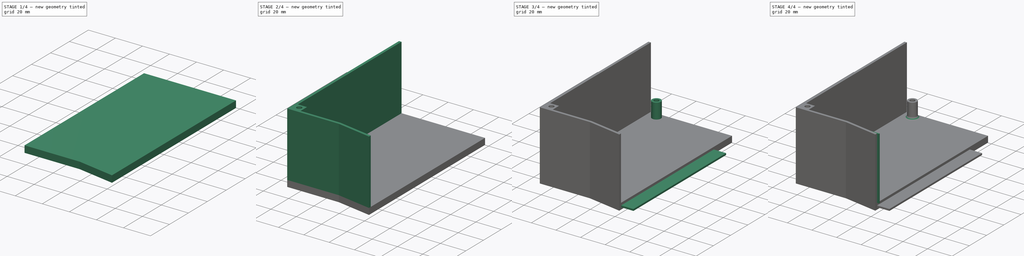
[diagram: build sequence overview — one tinted view per stage of 4, left to right]
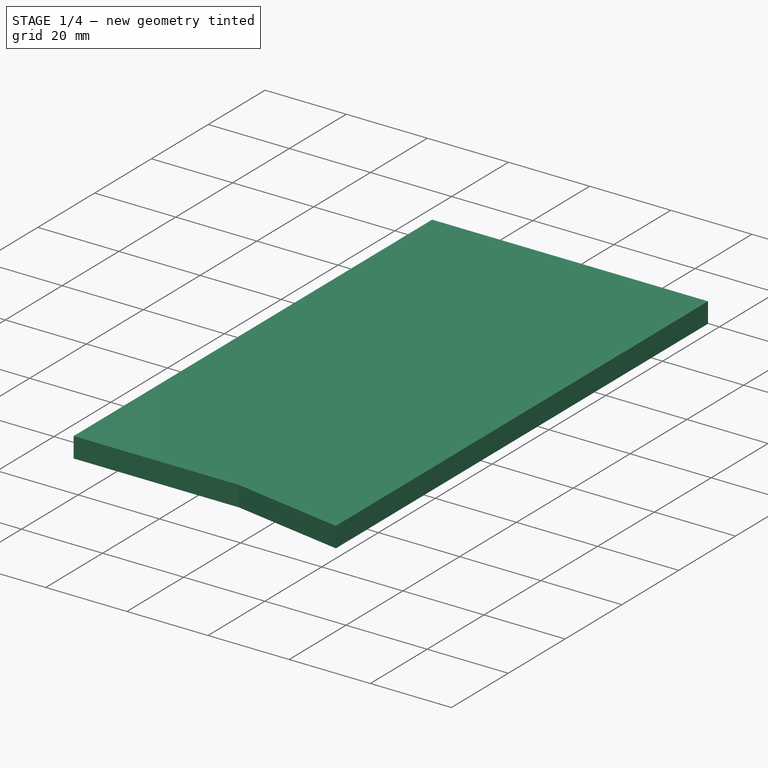
[diagram: stage 1 of 4 — iso view after this stage's code; geometry added in this stage tinted green]
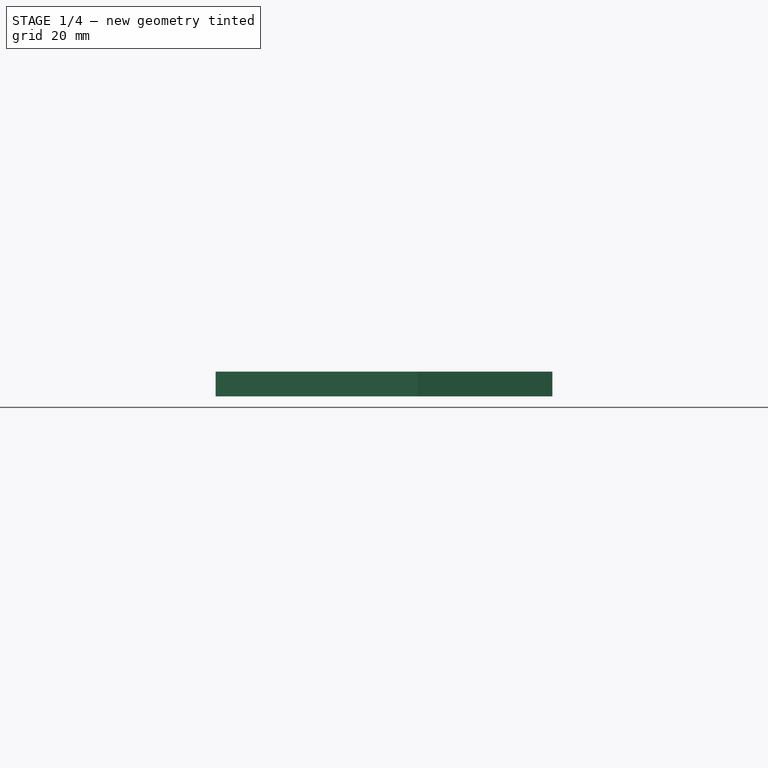
[diagram: stage 1 of 4 — front view after this stage's code; geometry added in this stage tinted green]
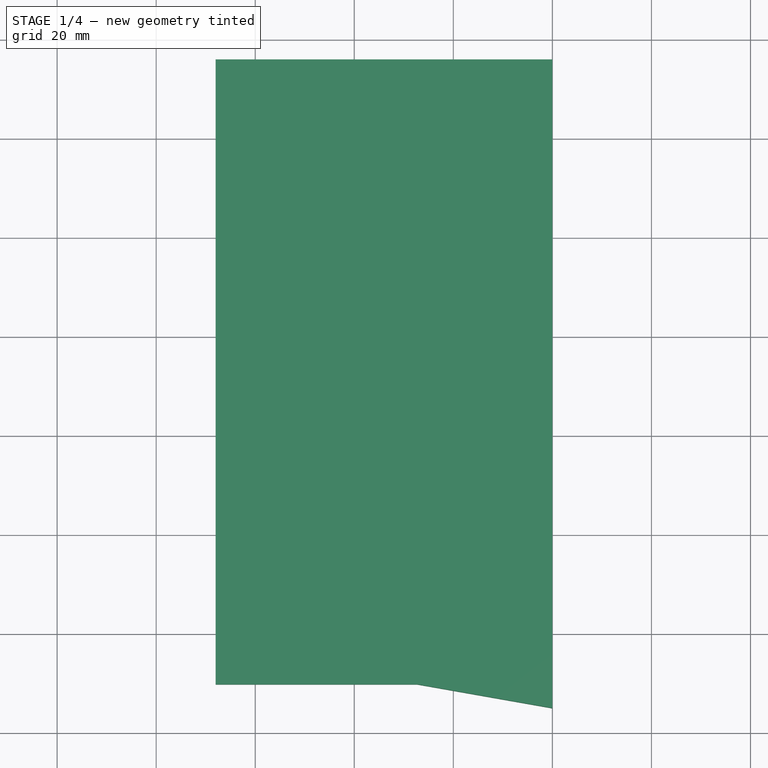
[diagram: stage 1 of 4 — top view after this stage's code; geometry added in this stage tinted green]
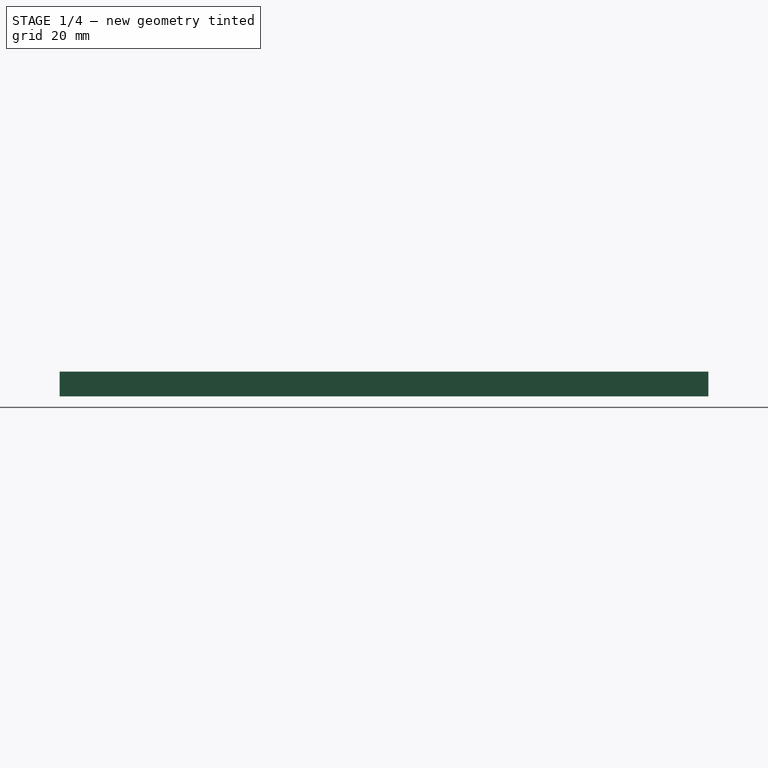
[diagram: stage 1 of 4 — right view after this stage's code; geometry added in this stage tinted green]
FCSTD DOCUMENT  (FreeCAD 2022.430R26244 +4758 (Git))
Label: SecondPartPeripherals
License: All rights reserved
LicenseURL: http://en.wikipedia.org/wiki/All_rights_reserved
objects: Sketcher::SketchObject×11, PartDesign::Pad×8, PartDesign::Pocket×3, PartDesign::CoordinateSystem×1, PartDesign::Fillet×1, PartDesign::Body×1, App::Part×1
note: 49 computed .brp shape members not serialized (recipe doc carries the construction recipe); baked Part::Feature solids carry a one-line shape summary decoded from their .brp

FEATURE [PartDesign::CoordinateSystem] LCS_0
  AttacherType = Attacher::AttachEngine3D
  MapMode = 2
  Support = -> [X_Axis001]
  TreeRank = 0
FEATURE [Sketcher::SketchObject] Sketch_1
  FullyConstrained = true
  TreeRank = 0
  sketch-geometry (4):
    g0: LineSegment StartX=0 StartY=0 StartZ=0 EndX=-63 EndY=0 EndZ=0
    g1: LineSegment StartX=-63 StartY=0 StartZ=0 EndX=-63 EndY=116 EndZ=0
    g2: LineSegment StartX=-63 StartY=116 StartZ=0 EndX=0 EndY=116 EndZ=0
    g3: LineSegment StartX=0 StartY=116 StartZ=0 EndX=0 EndY=0 EndZ=0
  constraints (11):
    c: Coincident(g0,g1)
    c: Coincident(g1,g2)
    c: Coincident(g2,g3)
    c: Coincident(g3,g0)
    c: Horizontal(g0)
    c: Horizontal(g2)
    c: Vertical(g1)
    c: Vertical(g3)
    c: Coincident(g0,g-1)
    c: DistanceY(g3,g3) = 116
    c: DistanceX(g2,g2) = 63
FEATURE [PartDesign::Pad] Pad  label="MainSupport"
  AddSubType = 0
  CheckUpToFaceLimits = true
  ClaimChildren = false
  Direction = (0,0,1)
  Fit = 0
  FitJoin = 0
  InnerFit = 0
  InnerFitJoin = 0
  InnerTaperAngle = 0
  InnerTaperAngleRev = 0
  Length = 5
  Length2 = 100
  NewSolid = false
  Profile = -> Sketch_1
  Suppress = false
  TreeRank = 0
  Type = 0
  _ProfileBasedVersion = 0
FEATURE [Sketcher::SketchObject] Sketch
  ExternalGeometry = -> [Pad]
  FullyConstrained = true
  MapMode = 5
  Support = -> [XY_Plane001]
  TreeRank = 1
  sketch-geometry (5):
    g0: LineSegment StartX=0 StartY=0 StartZ=0 EndX=-63 EndY=0 EndZ=0
    g1: LineSegment StartX=-63 StartY=0 StartZ=0 EndX=-63 EndY=-10.2 EndZ=0
    g2: LineSegment StartX=0 StartY=-15 StartZ=0 EndX=0 EndY=0 EndZ=0
    g3: LineSegment StartX=0 StartY=-15 StartZ=0 EndX=-27.2222 EndY=-10.2 EndZ=0
    g4: LineSegment StartX=-27.2222 StartY=-10.2 StartZ=0 EndX=-63 EndY=-10.2 EndZ=0
  constraints (13):
    c: Coincident(g0,g1)
    c: Coincident(g2,g0)
    c: Vertical(g1)
    c: Vertical(g2)
    c: Coincident(g0,g-1)
    c: Coincident(g0,g-3)
    c: DistanceY(g2,g2) = 15
    c: DistanceY(g1,g1) = 10.2
    c: Coincident(g3,g2)
    c: Coincident(g4,g3)
    c: Coincident(g4,g1)
    c: Horizontal(g4)
    c: Angle(g2,g3) = 1.39626
FEATURE [PartDesign::Pad] Pad001  label="ExtraPeripheralsSize"
  AddSubType = 0
  AlongSketchNormal = false
  BaseFeature = -> Pad
  CheckUpToFaceLimits = true
  ClaimChildren = false
  Direction = (0,0,1)
  Fit = 0
  FitJoin = 0
  InnerFit = 0
  InnerFitJoin = 0
  InnerTaperAngle = 0
  InnerTaperAngleRev = 0
  Length = 5
  Length2 = 100
  Linearize = true
  NewSolid = false
  Profile = -> Sketch
  Suppress = false
  TreeRank = 2
  Type = 0
  _ProfileBasedVersion = 1
FEATURE [Sketcher::SketchObject] Sketch001
  ExternalGeometry = -> [Pad001]
  FullyConstrained = true
  MapMode = 5
  Support = -> [XY_Plane001]
  TreeRank = 3
  sketch-geometry (4):
    g0: LineSegment StartX=-63 StartY=116 StartZ=0 EndX=-68 EndY=116 EndZ=0
    g1: LineSegment StartX=-68 StartY=116 StartZ=0 EndX=-68 EndY=-10.2 EndZ=0
    g2: LineSegment StartX=-68 StartY=-10.2 StartZ=0 EndX=-63 EndY=-10.2 EndZ=0
    g3: LineSegment StartX=-63 StartY=-10.2 StartZ=0 EndX=-63 EndY=116 EndZ=0
  constraints (10):
    c: Coincident(g0,g1)
    c: Coincident(g1,g2)
    c: Coincident(g2,g3)
    c: Coincident(g3,g0)
    c: Horizontal(g0)
    c: Horizontal(g2)
    c: Vertical(g1)
    c: Coincident(g0,g-3)
    c: Coincident(g2,g-4)
    c: DistanceX(g2,g2) = 5
FEATURE [PartDesign::Pad] Pad002  label="ExtraSideSize"
  AddSubType = 0
  AlongSketchNormal = false
  BaseFeature = -> Pad001
  CheckUpToFaceLimits = true
  ClaimChildren = false
  Direction = (0,0,1)
  Fit = 0
  FitJoin = 0
  InnerFit = 0
  InnerFitJoin = 0
  InnerTaperAngle = 0
  InnerTaperAngleRev = 0
  Length = 5
  Length2 = 100
  Linearize = true
  NewSolid = false
  Profile = -> Sketch001
  Suppress = false
  TreeRank = 4
  Type = 0
  _ProfileBasedVersion = 1
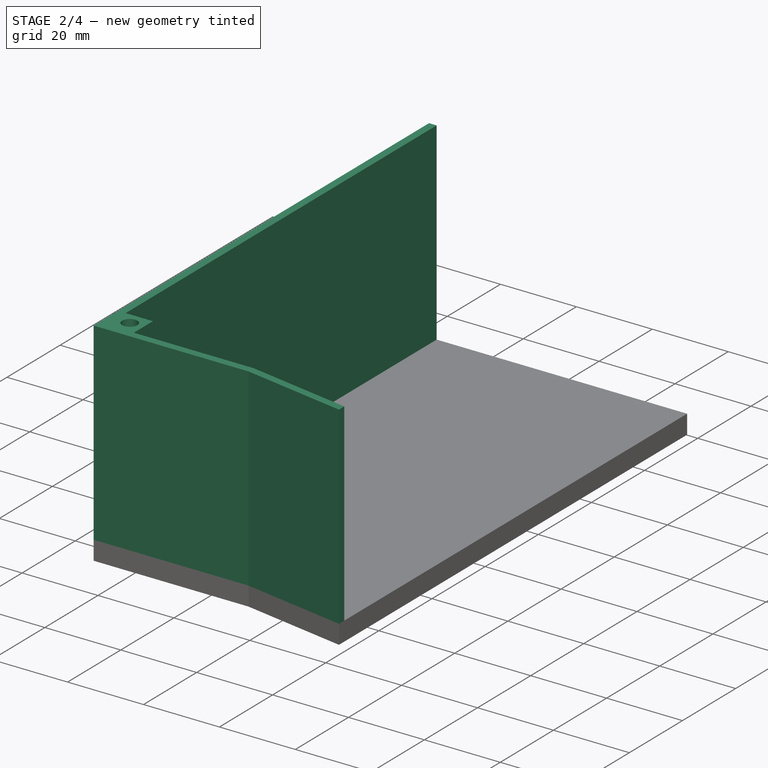
[diagram: stage 2 of 4 — iso view after this stage's code; geometry added in this stage tinted green]
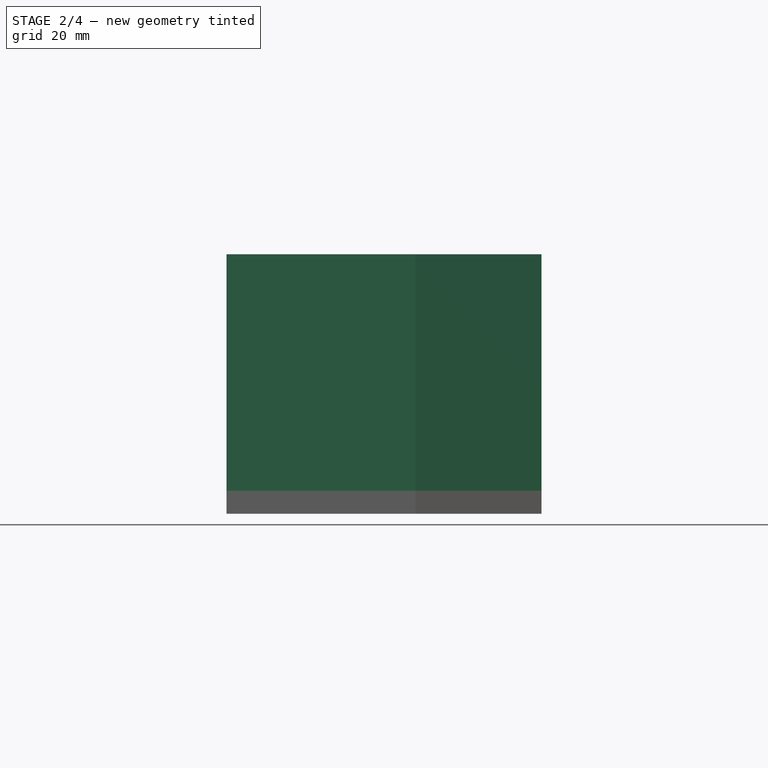
[diagram: stage 2 of 4 — front view after this stage's code; geometry added in this stage tinted green]
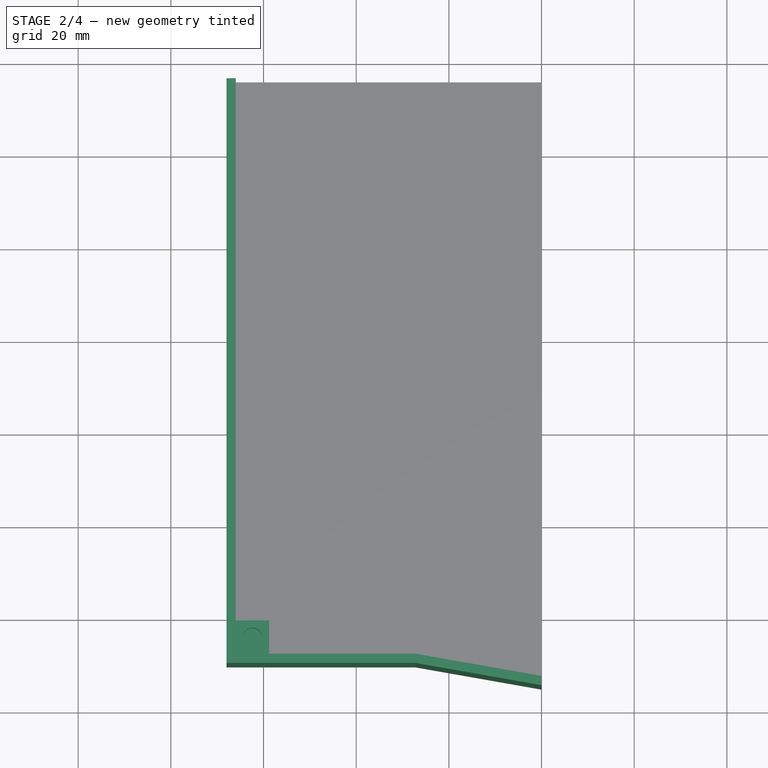
[diagram: stage 2 of 4 — top view after this stage's code; geometry added in this stage tinted green]
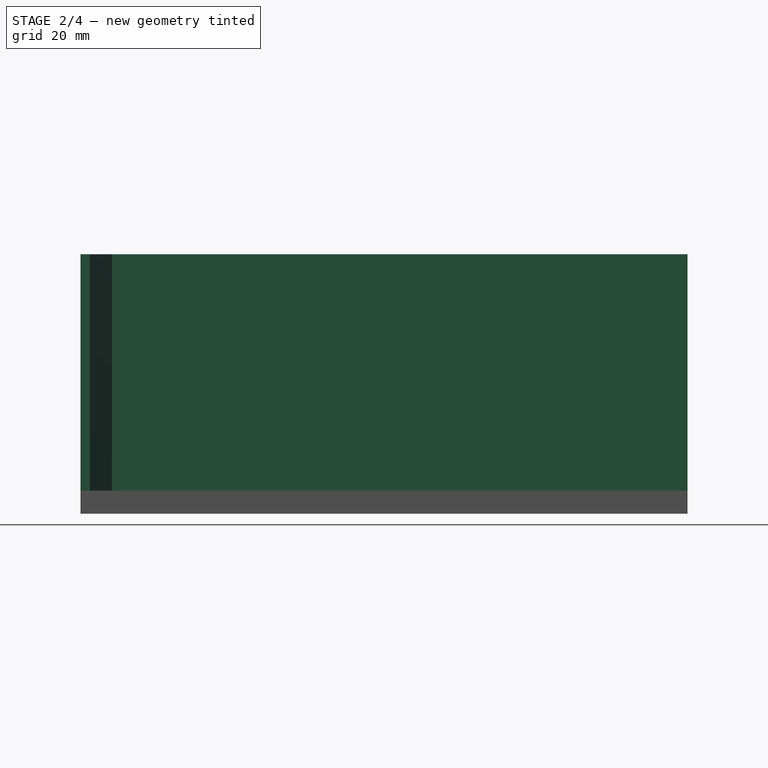
[diagram: stage 2 of 4 — right view after this stage's code; geometry added in this stage tinted green]
FEATURE [Sketcher::SketchObject] Sketch002
  ExternalGeometry = -> [Pad002]
  FullyConstrained = true
  MapMode = 5
  Placement = pos=(0,0,5) rot=(0,0,1;0rad)
  Support = -> [Pad002]
  TreeRank = 5
  sketch-geometry (9):
    g0: LineSegment StartX=-68 StartY=116 StartZ=0 EndX=-68 EndY=-10.2 EndZ=0
    g1: LineSegment StartX=-68 StartY=-10.2 StartZ=0 EndX=-27.2222 EndY=-10.2 EndZ=0
    g2: LineSegment StartX=-27.2222 StartY=-8.2 StartZ=0 EndX=-66 EndY=-8.2 EndZ=0
    g3: LineSegment StartX=-66 StartY=-8.2 StartZ=0 EndX=-66 EndY=116 EndZ=0
    g4: LineSegment StartX=-66 StartY=116 StartZ=0 EndX=-68 EndY=116 EndZ=0
    g5: LineSegment [constr] StartX=-27.2222 StartY=-10.2 StartZ=0 EndX=-27.2222 EndY=-8.2 EndZ=0
    g6: LineSegment StartX=-27.2222 StartY=-10.2 StartZ=0 EndX=0 EndY=-15 EndZ=0
    g7: LineSegment StartX=0 StartY=-15 StartZ=0 EndX=0 EndY=-13 EndZ=0
    g8: LineSegment StartX=-27.2222 StartY=-8.2 StartZ=0 EndX=0 EndY=-13 EndZ=0
  constraints (22):
    c: Coincident(g0,g-3)
    c: Coincident(g0,g-3)
    c: Coincident(g1,g0)
    c: Horizontal(g2)
    c: Coincident(g3,g2)
    c: Vertical(g3)
    c: Coincident(g4,g3)
    c: Coincident(g4,g0)
    c: Horizontal(g4)
    c: DistanceX(g4,g4) = 2
    c: Coincident(g1,g-4)
    c: Coincident(g5,g1)
    c: Vertical(g5)
    c: DistanceY(g5,g5) = 2
    c: Coincident(g2,g5)
    c: Coincident(g6,g1)
    c: Coincident(g6,g-5)
    c: Coincident(g7,g6)
    c: Vertical(g7)
    c: DistanceY(g7,g7) = 2
    c: Coincident(g8,g2)
    c: Coincident(g8,g7)
FEATURE [PartDesign::Pad] Pad003  label="SidePanel"
  AddSubType = 0
  AlongSketchNormal = false
  BaseFeature = -> Pad002
  CheckUpToFaceLimits = true
  ClaimChildren = false
  Direction = (0,0,1)
  Fit = 0
  FitJoin = 0
  InnerFit = 0
  InnerFitJoin = 0
  InnerTaperAngle = 0
  InnerTaperAngleRev = 0
  Length = 51
  Length2 = 100
  Linearize = true
  NewSolid = false
  Profile = -> Sketch002
  Suppress = false
  TreeRank = 6
  Type = 0
  _ProfileBasedVersion = 1
FEATURE [Sketcher::SketchObject] Sketch003
  ExternalGeometry = -> [Pad003]
  FullyConstrained = true
  MapMode = 5
  Placement = pos=(0,0,5) rot=(0,0,1;0rad)
  Support = -> [Pad003]
  TreeRank = 7
  sketch-geometry (4):
    g0: LineSegment StartX=-66 StartY=-8.2 StartZ=0 EndX=-58.8 EndY=-8.2 EndZ=0
    g1: LineSegment StartX=-58.8 StartY=-8.2 StartZ=0 EndX=-58.8 EndY=-1 EndZ=0
    g2: LineSegment StartX=-58.8 StartY=-1 StartZ=0 EndX=-66 EndY=-1 EndZ=0
    g3: LineSegment StartX=-66 StartY=-1 StartZ=0 EndX=-66 EndY=-8.2 EndZ=0
  constraints (11):
    c: Coincident(g0,g1)
    c: Coincident(g1,g2)
    c: Coincident(g2,g3)
    c: Coincident(g3,g0)
    c: Vertical(g3)
    c: Coincident(g0,g-3)
    c: Equal(g3,g0)
    c: Equal(g3,g1)
    c: Horizontal(g0)
    c: Vertical(g1)
    c: DistanceX(g2,g2) = 7.2
FEATURE [PartDesign::Pad] Pad004  label="ColumnPart"
  AddSubType = 0
  AlongSketchNormal = false
  BaseFeature = -> Pad003
  CheckUpToFaceLimits = true
  ClaimChildren = false
  Direction = (0,0,1)
  Fit = 0
  FitJoin = 0
  InnerFit = 0
  InnerFitJoin = 0
  InnerTaperAngle = 0
  InnerTaperAngleRev = 0
  Length = 51
  Length2 = 100
  Linearize = true
  NewSolid = false
  Profile = -> Sketch003
  Suppress = false
  TreeRank = 8
  Type = 0
  _ProfileBasedVersion = 1
FEATURE [Sketcher::SketchObject] Sketch004
  ExternalGeometry = -> [Pad004]
  FullyConstrained = true
  MapMode = 5
  Placement = pos=(0,0,56) rot=(0,0,1;0rad)
  Support = -> [Pad004]
  TreeRank = 9
  sketch-geometry (3):
    g0: LineSegment [constr] StartX=-62.4 StartY=-1 StartZ=0 EndX=-62.4 EndY=-4.6 EndZ=0
    g1: LineSegment [constr] StartX=-62.4 StartY=-4.6 StartZ=0 EndX=-58.8 EndY=-4.6 EndZ=0
    g2: Circle CenterX=-62.4 CenterY=-4.6 CenterZ=0 NormalX=0 NormalY=0 NormalZ=1 AngleXU=0 Radius=2
  constraints (7):
    c: Vertical(g0)
    c: Coincident(g1,g0)
    c: Horizontal(g1)
    c: Symmetric(g-4,g-3,g0)
    c: Symmetric(g-4,g-4,g1)
    c: Coincident(g2,g0)
    c: Diameter(g2) = 4
FEATURE [PartDesign::Pocket] Pocket  label="ColumnPartHole"
  AddSubType = 1
  BaseFeature = -> Pad004
  CheckUpToFaceLimits = true
  ClaimChildren = false
  Fit = 0
  FitJoin = 0
  InnerFit = 0
  InnerFitJoin = 0
  InnerTaperAngle = 0
  InnerTaperAngleRev = 0
  Length = 6.7
  Length2 = 100
  Linearize = true
  NewSolid = false
  Profile = -> Sketch004
  Suppress = false
  TreeRank = 10
  Type = 0
  _ProfileBasedVersion = 1
  _Version = 1
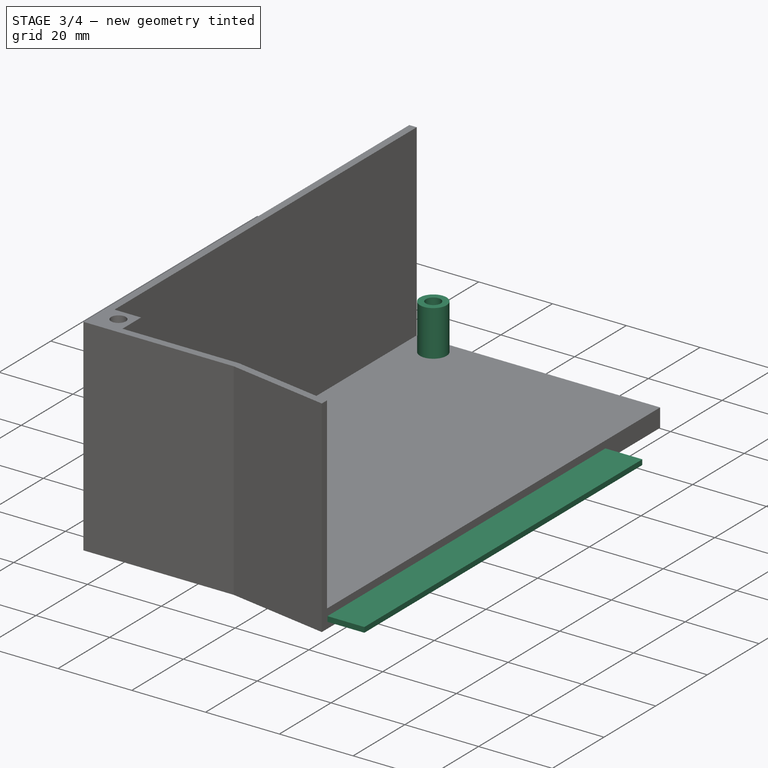
[diagram: stage 3 of 4 — iso view after this stage's code; geometry added in this stage tinted green]
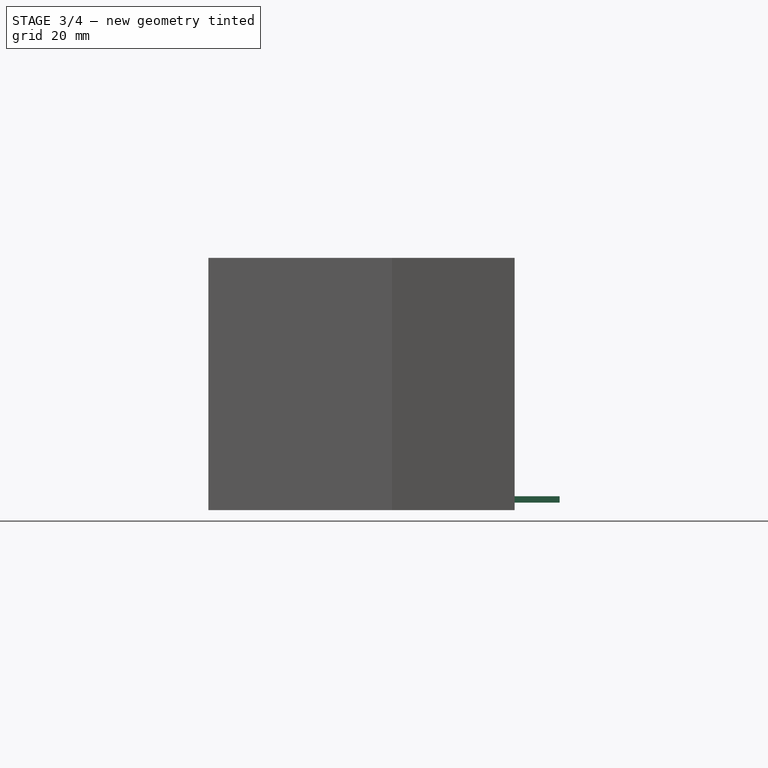
[diagram: stage 3 of 4 — front view after this stage's code; geometry added in this stage tinted green]
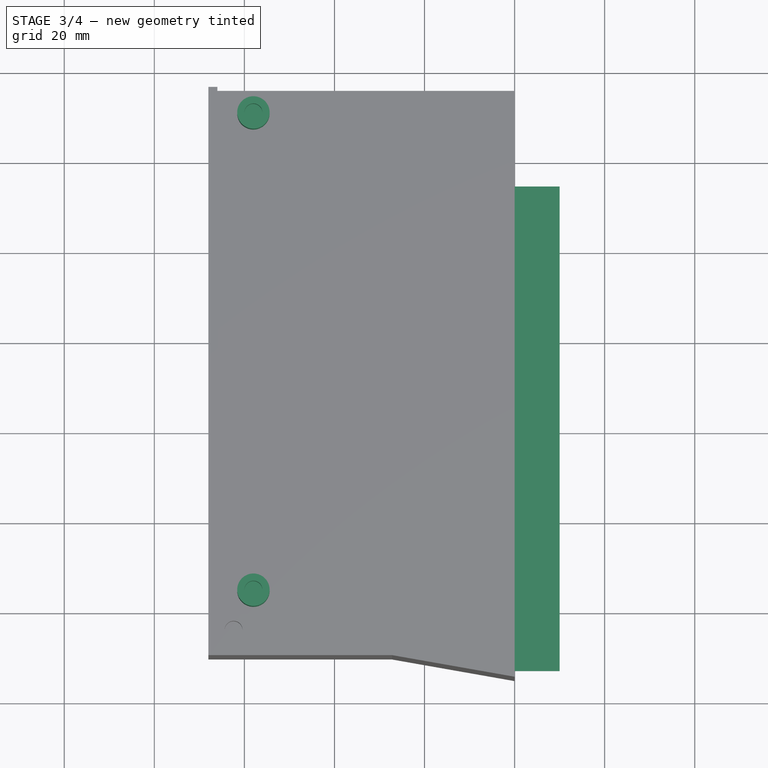
[diagram: stage 3 of 4 — top view after this stage's code; geometry added in this stage tinted green]
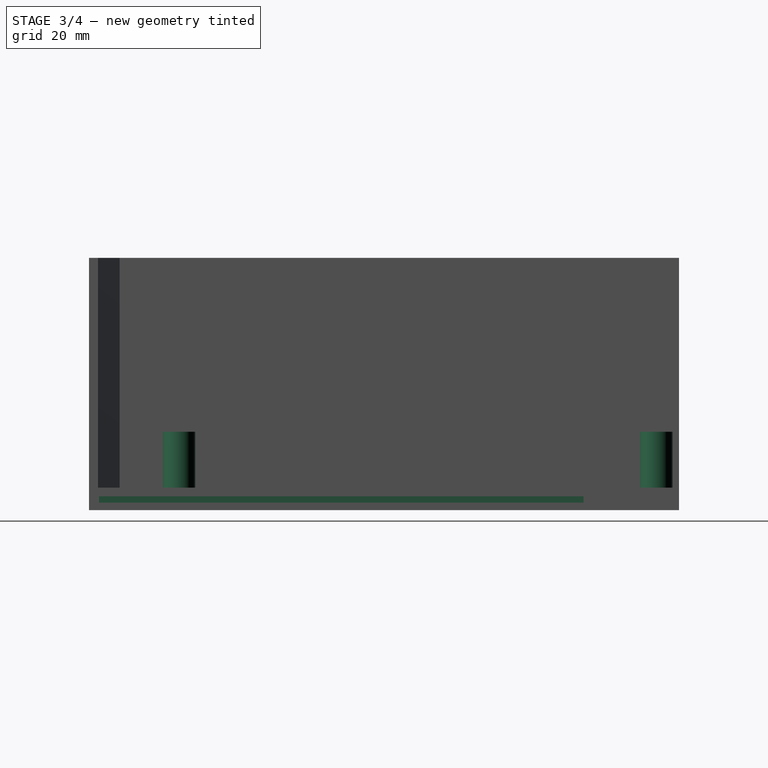
[diagram: stage 3 of 4 — right view after this stage's code; geometry added in this stage tinted green]
FEATURE [Sketcher::SketchObject] Sketch005
  ExternalGeometry = -> [Pocket]
  FullyConstrained = true
  MapMode = 5
  Placement = pos=(0,0,0) rot=(0.57735,0.57735,0.57735;2.0944rad)
  Support = -> [Pocket]
  TreeRank = 11
  sketch-geometry (4):
    g0: LineSegment StartX=94.8 StartY=3.06 StartZ=0 EndX=-12.8 EndY=3.06 EndZ=0
    g1: LineSegment StartX=-12.8 StartY=3.06 StartZ=0 EndX=-12.8 EndY=1.66 EndZ=0
    g2: LineSegment StartX=-12.8 StartY=1.66 StartZ=0 EndX=94.8 EndY=1.66 EndZ=0
    g3: LineSegment StartX=94.8 StartY=1.66 StartZ=0 EndX=94.8 EndY=3.06 EndZ=0
  constraints (12):
    c: Coincident(g0,g1)
    c: Coincident(g1,g2)
    c: Coincident(g2,g3)
    c: Coincident(g3,g0)
    c: Horizontal(g0)
    c: Horizontal(g2)
    c: Vertical(g1)
    c: Vertical(g3)
    c: DistanceX(g0,g-3) = 21.2
    c: DistanceX(g-4,g0) = 2.2
    c: DistanceY(g0,g-4) = 1.94
    c: DistanceY(g1,g1) = 1.4
FEATURE [PartDesign::Pad] Pad005  label="Puzzle1"
  AddSubType = 0
  AlongSketchNormal = false
  BaseFeature = -> Pocket
  CheckUpToFaceLimits = true
  ClaimChildren = false
  Direction = (1,0,0)
  Fit = 0
  FitJoin = 0
  InnerFit = 0
  InnerFitJoin = 0
  InnerTaperAngle = 0
  InnerTaperAngleRev = 0
  Length = 10
  Length2 = 100
  Linearize = true
  NewSolid = false
  Profile = -> Sketch005
  Suppress = false
  TreeRank = 12
  Type = 0
  _ProfileBasedVersion = 1
FEATURE [Sketcher::SketchObject] Sketch006
  ExternalGeometry = -> [Pad005]
  FullyConstrained = true
  MapMode = 5
  Placement = pos=(0,0,5) rot=(0,0,1;0rad)
  Support = -> [Pad005]
  TreeRank = 13
  sketch-geometry (2):
    g0: Circle CenterX=-58 CenterY=5 CenterZ=0 NormalX=0 NormalY=0 NormalZ=1 AngleXU=0 Radius=3.6
    g1: Circle CenterX=-58 CenterY=111 CenterZ=0 NormalX=0 NormalY=0 NormalZ=1 AngleXU=0 Radius=3.6
  constraints (6):
    c: DistanceY(g-3,g0) = 5
    c: DistanceX(g-3,g0) = 5
    c: DistanceX(g-3,g1) = 5
    c: DistanceY(g1,g-3) = 5
    c: Diameter(g1) = 7.2
    c: Diameter(g0) = 7.2
FEATURE [PartDesign::Pad] Pad006  label="MotherboardColumn"
  AddSubType = 0
  AlongSketchNormal = false
  BaseFeature = -> Pad005
  CheckUpToFaceLimits = true
  ClaimChildren = false
  Direction = (0,0,1)
  Fit = 0
  FitJoin = 0
  InnerFit = 0
  InnerFitJoin = 0
  InnerTaperAngle = 0
  InnerTaperAngleRev = 0
  Length = 12.4
  Length2 = 100
  Linearize = true
  NewSolid = false
  Profile = -> Sketch006
  Suppress = false
  TreeRank = 14
  Type = 0
  _ProfileBasedVersion = 1
FEATURE [Sketcher::SketchObject] Sketch007
  ExternalGeometry = -> [Pad006]
  FullyConstrained = true
  MapMode = 5
  Placement = pos=(0,0,17.4) rot=(0,0,1;0rad)
  Support = -> [Pad006]
  TreeRank = 15
  sketch-geometry (2):
    g0: Circle CenterX=-58 CenterY=5 CenterZ=0 NormalX=0 NormalY=0 NormalZ=1 AngleXU=0 Radius=2
    g1: Circle CenterX=-58 CenterY=111 CenterZ=0 NormalX=0 NormalY=0 NormalZ=1 AngleXU=0 Radius=2
  constraints (4):
    c: Coincident(g0,g-3)
    c: Coincident(g1,g-4)
    c: Diameter(g1) = 4
    c: Diameter(g0) = 4
FEATURE [PartDesign::Pocket] Pocket001  label="ColumnInsertHole"
  AddSubType = 1
  BaseFeature = -> Pad006
  CheckUpToFaceLimits = true
  ClaimChildren = false
  Fit = 0
  FitJoin = 0
  InnerFit = 0
  InnerFitJoin = 0
  InnerTaperAngle = 0
  InnerTaperAngleRev = 0
  Length = 6.7
  Length2 = 100
  Linearize = true
  NewSolid = false
  Profile = -> Sketch007
  Suppress = false
  TreeRank = 16
  Type = 0
  _ProfileBasedVersion = 1
  _Version = 1
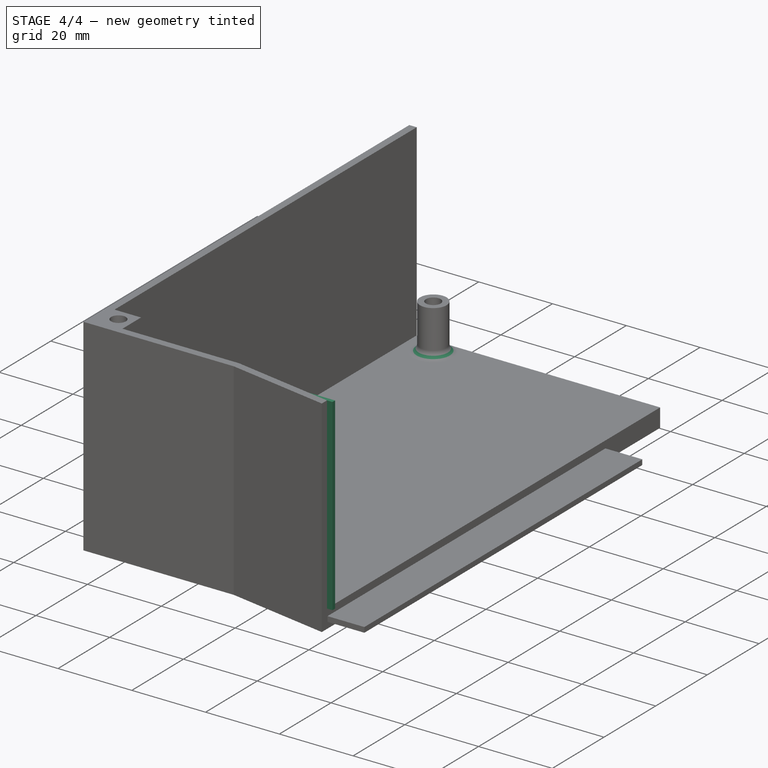
[diagram: stage 4 of 4 — iso view after this stage's code; geometry added in this stage tinted green]
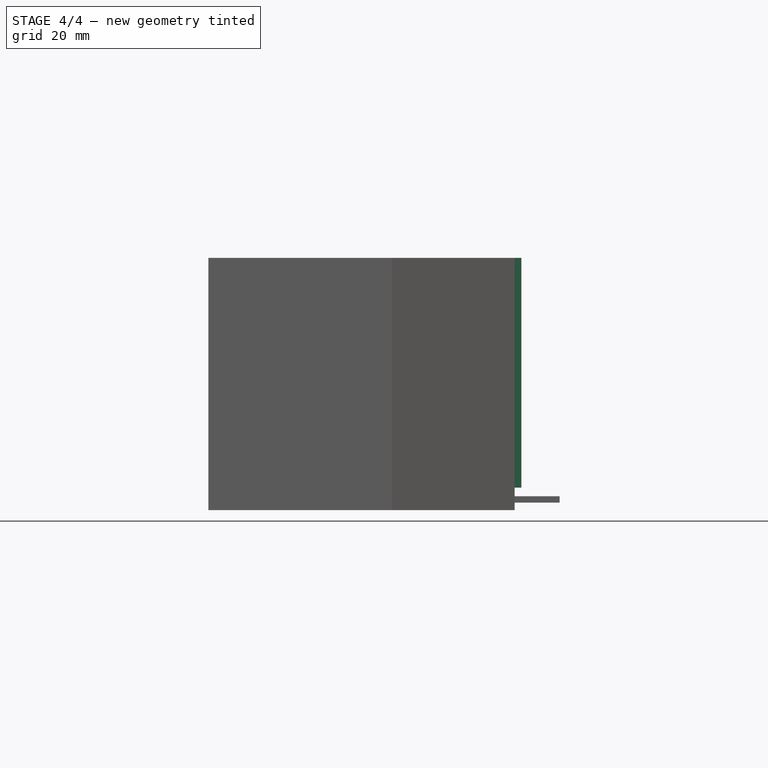
[diagram: stage 4 of 4 — front view after this stage's code; geometry added in this stage tinted green]
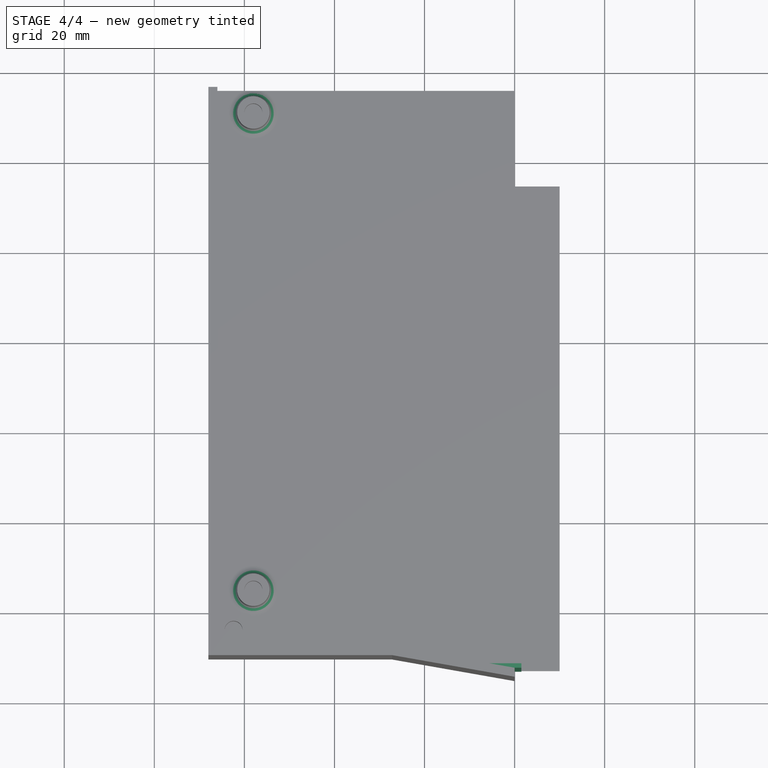
[diagram: stage 4 of 4 — top view after this stage's code; geometry added in this stage tinted green]
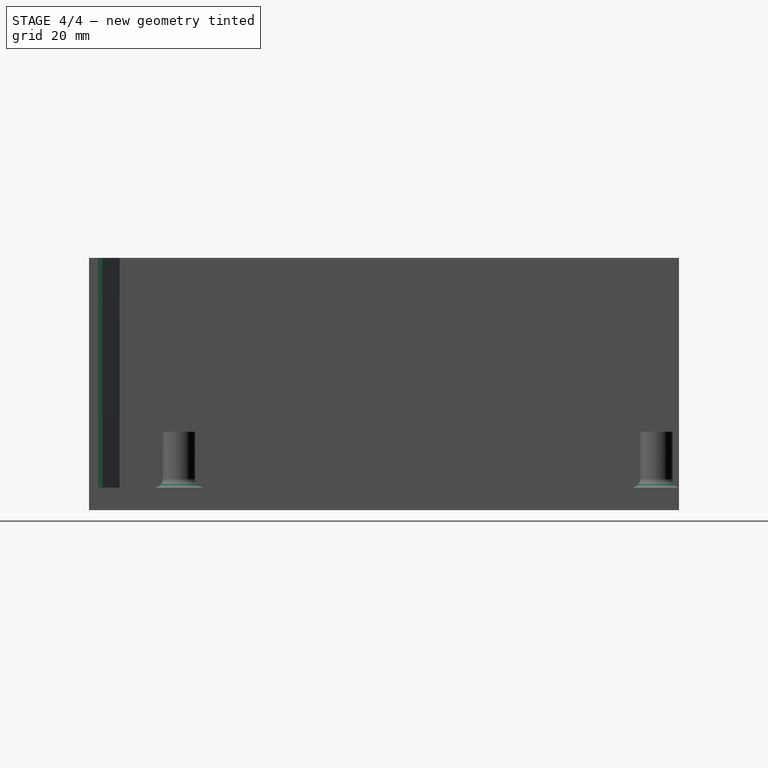
[diagram: stage 4 of 4 — right view after this stage's code; geometry added in this stage tinted green]
FEATURE [Sketcher::SketchObject] Sketch008
  ExternalGeometry = -> [Pocket001]
  FullyConstrained = true
  MapMode = 5
  Placement = pos=(0,116,0) rot=(0,0.707107,0.707107;3.14159rad)
  Support = -> [Pocket001]
  TreeRank = 17
  sketch-geometry (4):
    g0: LineSegment StartX=20.95 StartY=3.5 StartZ=0 EndX=66.05 EndY=3.5 EndZ=0
    g1: LineSegment StartX=66.05 StartY=3.5 StartZ=0 EndX=66.05 EndY=1.42 EndZ=0
    g2: LineSegment StartX=66.05 StartY=1.42 StartZ=0 EndX=20.95 EndY=1.42 EndZ=0
    g3: LineSegment StartX=20.95 StartY=1.42 StartZ=0 EndX=20.95 EndY=3.5 EndZ=0
  constraints (12):
    c: Coincident(g0,g1)
    c: Coincident(g1,g2)
    c: Coincident(g2,g3)
    c: Coincident(g3,g0)
    c: Horizontal(g0)
    c: Horizontal(g2)
    c: Vertical(g1)
    c: Vertical(g3)
    c: DistanceX(g-3,g0) = 20.95
    c: DistanceY(g0,g-4) = 1.5
    c: DistanceX(g0,g-4) = 1.95
    c: DistanceY(g1,g1) = 2.08
FEATURE [PartDesign::Pocket] Pocket002  label="PuzzleHole1"
  AddSubType = 1
  BaseFeature = -> Pocket001
  CheckUpToFaceLimits = true
  ClaimChildren = false
  Fit = 0
  FitJoin = 0
  InnerFit = 0
  InnerFitJoin = 0
  InnerTaperAngle = 0
  InnerTaperAngleRev = 0
  Length = 11
  Length2 = 100
  Linearize = true
  NewSolid = false
  Profile = -> Sketch008
  Suppress = false
  TreeRank = 18
  Type = 0
  _ProfileBasedVersion = 1
  _Version = 1
FEATURE [Sketcher::SketchObject] Sketch009
  ExternalGeometry = -> [Pocket002]
  FullyConstrained = true
  MapMode = 5
  Placement = pos=(0,0,5) rot=(0,0,1;0rad)
  Support = -> [Pocket002]
  TreeRank = 19
  sketch-geometry (6):
    g0: LineSegment [constr] StartX=0 StartY=-13 StartZ=0 EndX=0 EndY=-12 EndZ=0
    g1: LineSegment StartX=0 StartY=-12 StartZ=0 EndX=-5.67128 EndY=-12 EndZ=0
    g2: LineSegment StartX=0 StartY=-12 StartZ=0 EndX=1.5 EndY=-12 EndZ=0
    g3: LineSegment StartX=1.5 StartY=-12 StartZ=0 EndX=1.5 EndY=-13 EndZ=0
    g4: LineSegment StartX=1.5 StartY=-13 StartZ=0 EndX=0 EndY=-13 EndZ=0
    g5: LineSegment StartX=0 StartY=-13 StartZ=0 EndX=-5.67128 EndY=-12 EndZ=0
  constraints (16):
    c: Coincident(g0,g-3)
    c: Vertical(g0)
    c: Coincident(g1,g0)
    c: PointOnObject(g1,g-3)
    c: Horizontal(g1)
    c: Coincident(g2,g1)
    c: Horizontal(g2)
    c: Coincident(g3,g2)
    c: Vertical(g3)
    c: Coincident(g4,g3)
    c: Coincident(g4,g-3)
    c: Horizontal(g4)
    c: DistanceX(g2,g2) = 1.5
    c: DistanceY(g3,g3) = 1
    c: Coincident(g5,g4)
    c: Coincident(g5,g1)
FEATURE [PartDesign::Pad] Pad007  label="PanelGuard1"
  AddSubType = 0
  AlongSketchNormal = false
  BaseFeature = -> Pocket002
  CheckUpToFaceLimits = true
  ClaimChildren = false
  Direction = (0,0,1)
  Fit = 0
  FitJoin = 0
  InnerFit = 0
  InnerFitJoin = 0
  InnerTaperAngle = 0
  InnerTaperAngleRev = 0
  Length = 51
  Length2 = 100
  Linearize = true
  NewSolid = false
  Profile = -> Sketch009
  Suppress = false
  TreeRank = 20
  Type = 0
  _ProfileBasedVersion = 1
FEATURE [PartDesign::Fillet] Fillet
  AddSubType = 0
  Base = -> Pad007 [Edge21,Edge20]
  BaseFeature = -> Pad007
  NewSolid = false
  Radius = 2
  SupportTransform = false
  Suppress = false
  TreeRank = 21
FEATURE [PartDesign::Body] Body
  AutoGroupSolids = false
  ClaimAllChildren = false
  ExportMode = 0
  Group = -> [LCS_0,Sketch_1,Pad,Sketch,Pad001,Sketch001,Pad002,Sketch002,Pad003,Sketch003,Pad004,Sketch004,Pocket,Sketch005,Pad005,Sketch006,Pad006,Sketch007,Pocket001,Sketch008,Pocket002,Sketch009,Pad007,Fillet]
  Origin = -> Origin001
  Tip = -> Fillet
  TreeRank = 0
  _ExportChildren = -> [LCS_0,Pad,Pad001,Pad002,Pad003,Pad004,Pocket,Pad005,Pad006,Pocket001,Pocket002,Pad007,Fillet]
  _GroupVersion = 1
FEATURE [App::Part] Part  label="SecondPartPeripherals"
  ClaimAllChildren = false
  ExportMode = 1
  Group = -> [Body]
  Origin = -> Origin
  TreeRank = 0
  _ExportChildren = -> [Body]
  _GroupVersion = 1
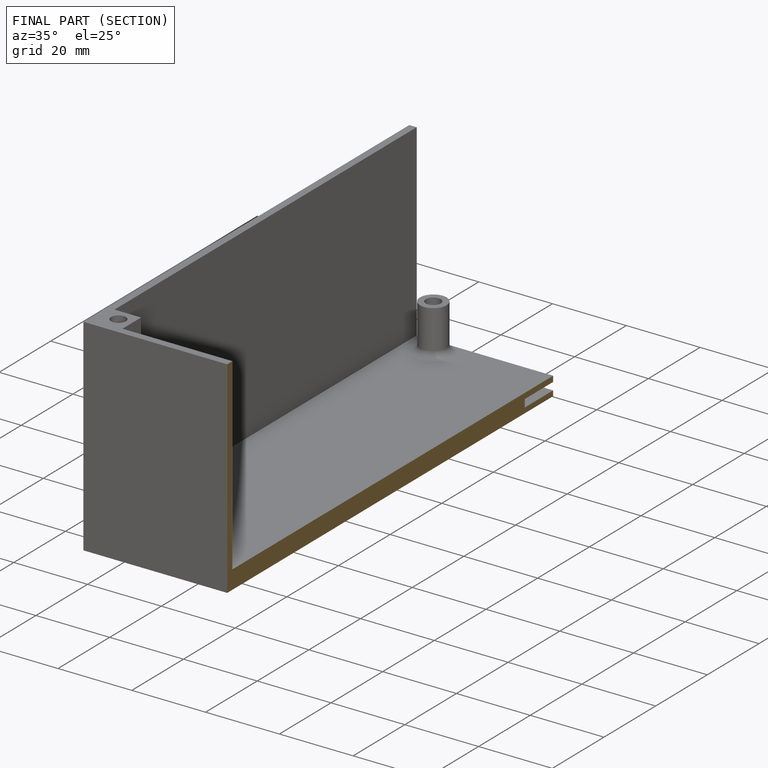
[diagram: finished part — half-section view (interior)]
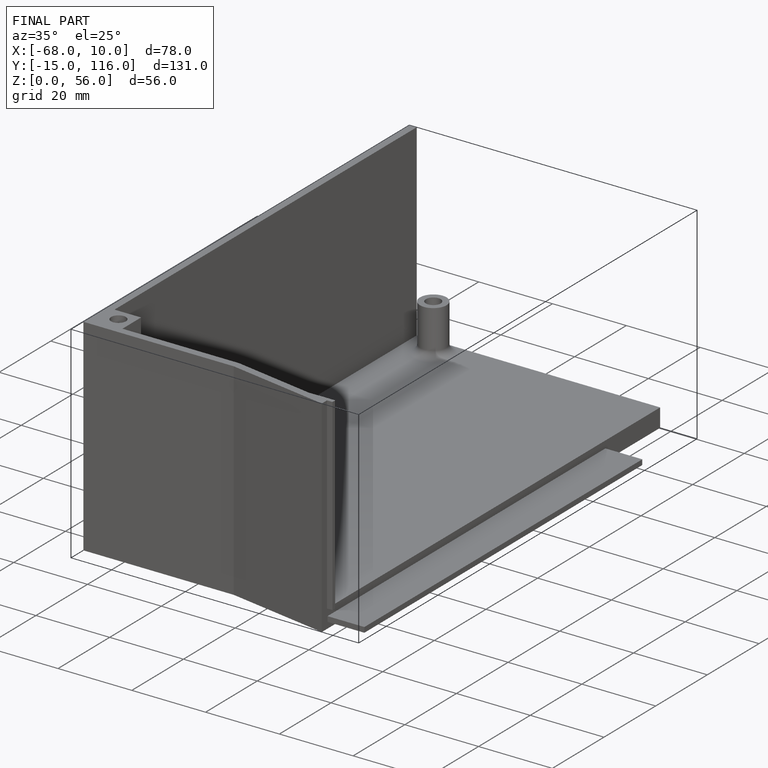
[diagram: finished part — iso view with bounding-box wireframe]
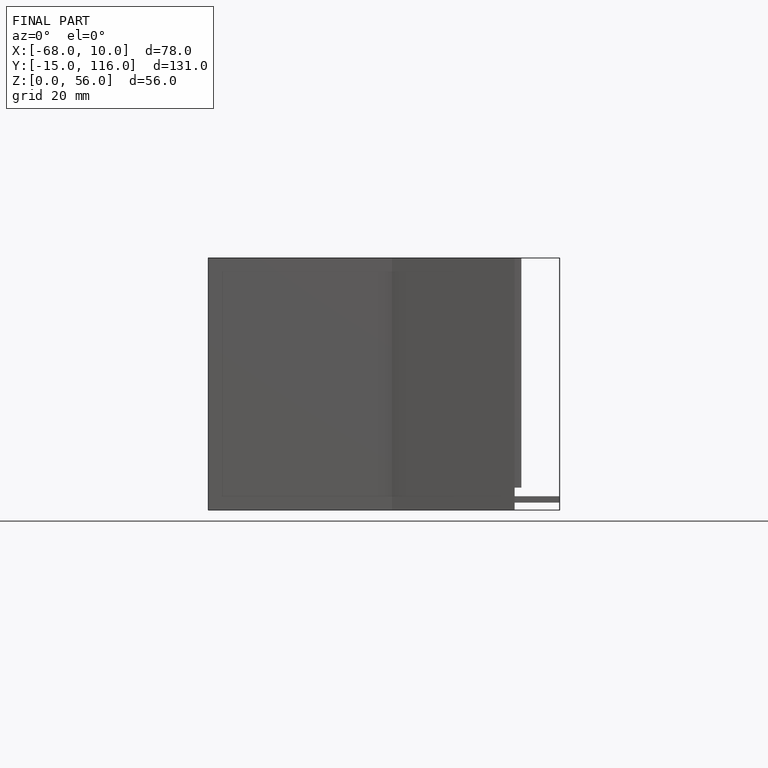
[diagram: finished part — front view with bounding-box wireframe]
